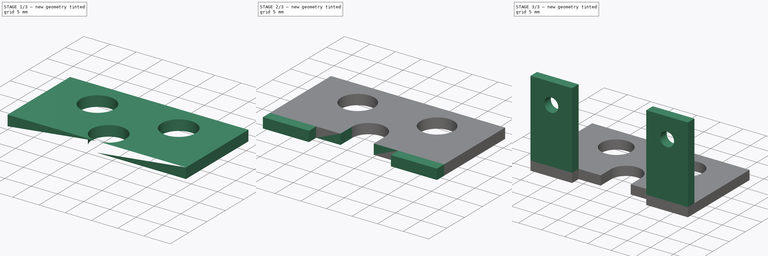
[diagram: build sequence overview — one tinted view per stage of 3, left to right]
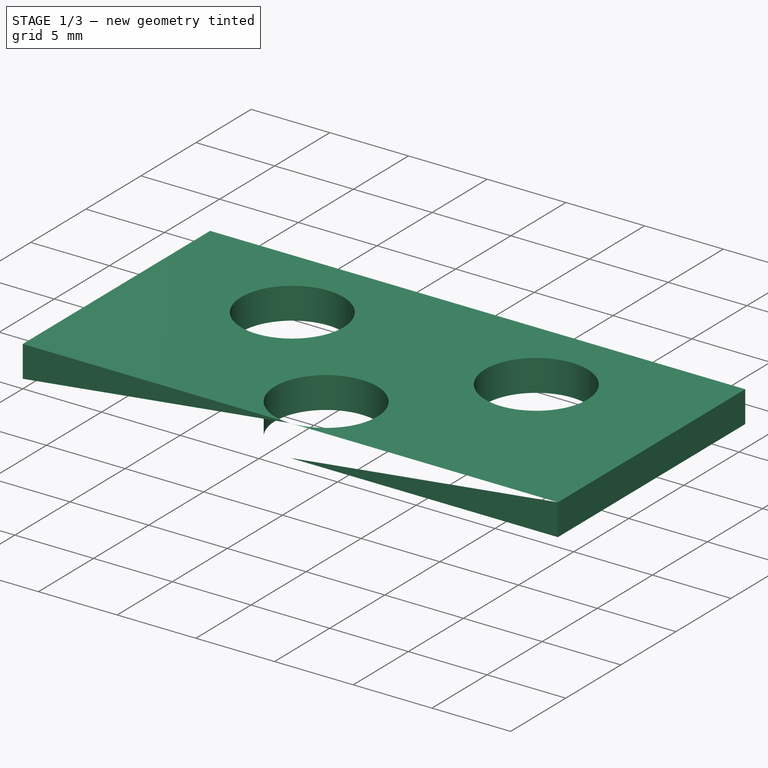
[diagram: stage 1 of 3 — iso view after this stage's code; geometry added in this stage tinted green]
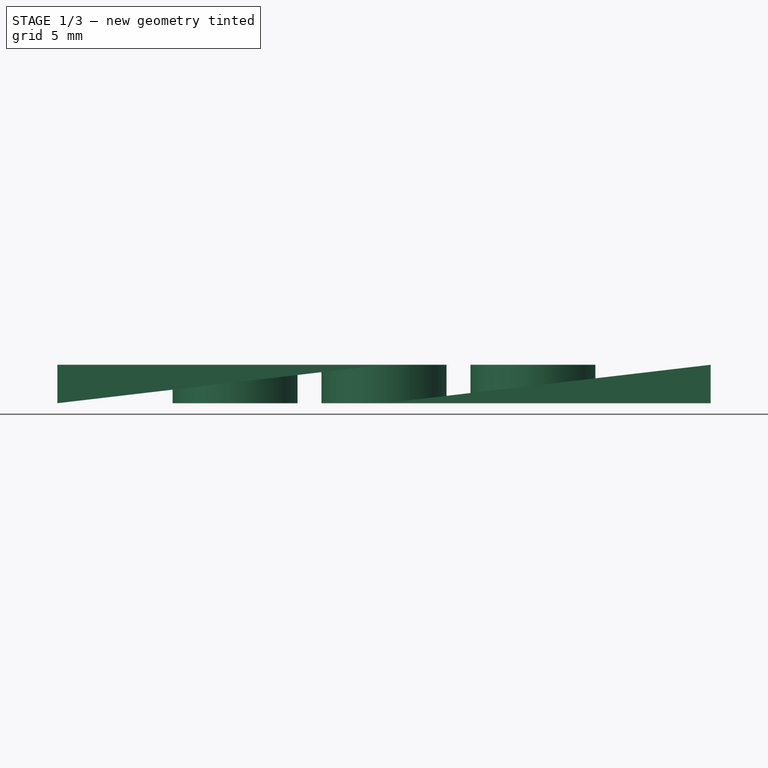
[diagram: stage 1 of 3 — front view after this stage's code; geometry added in this stage tinted green]
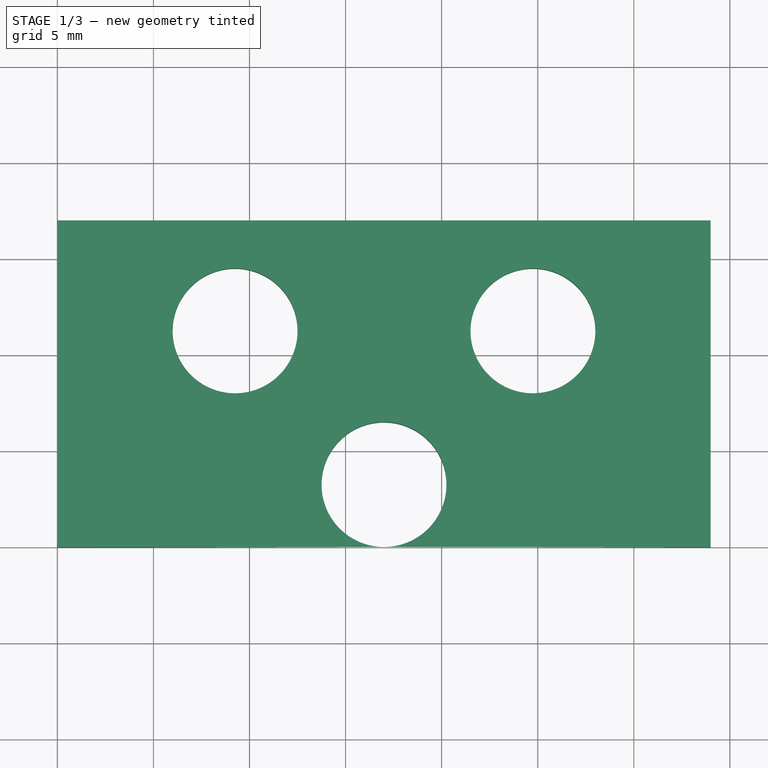
[diagram: stage 1 of 3 — top view after this stage's code; geometry added in this stage tinted green]
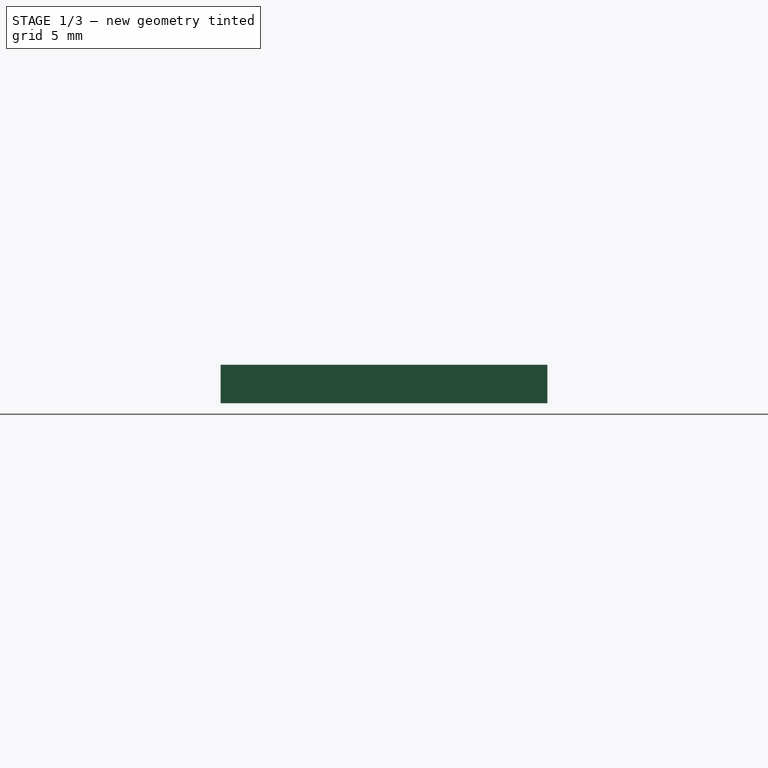
[diagram: stage 1 of 3 — right view after this stage's code; geometry added in this stage tinted green]
FCSTD DOCUMENT  (FreeCAD 0.16R)
Label: support_led_top
License: All rights reserved
LicenseURL: http://en.wikipedia.org/wiki/All_rights_reserved
objects: Sketcher::SketchObject×5, PartDesign::Pocket×3, PartDesign::Pad×2, Part::Box×1
note: 16 computed .brp shape members not serialized (recipe doc carries the construction recipe); baked Part::Feature solids carry a one-line shape summary decoded from their .brp

FEATURE [Part::Box] Box  label="Cube"
  Height = 2
  Length = 34
  Width = 17
FEATURE [Sketcher::SketchObject] Sketch
  ExternalGeometry = -> [Box]
  Placement = pos=(0,0,2) rot=(0,0,1;0rad)
  Support = -> Box [Face6]
  sketch-geometry (5):
    g0: Circle CenterX=9.25 CenterY=11.25 CenterZ=0 NormalX=0 NormalY=0 NormalZ=1 Radius=3.25
    g1: Circle CenterX=24.75 CenterY=11.25 CenterZ=0 NormalX=0 NormalY=0 NormalZ=1 Radius=3.25
    g2: Circle CenterX=17 CenterY=3.25 CenterZ=0 NormalX=0 NormalY=0 NormalZ=1 Radius=3.25
    g3: LineSegment StartX=13.75 StartY=3.25 StartZ=0 EndX=13.75 EndY=0 EndZ=0
    g4: LineSegment StartX=20.25 StartY=3.24998 StartZ=0 EndX=20.25 EndY=0 EndZ=0
  constraints (17):
    c: Radius(g0) = 3.25
    c: Distance(g0,g-3) = 9.25
    c: Distance(g0,g-5) = 11.25
    c: Radius(g1) = 3.25
    c: Distance(g1,g-6) = 9.25
    c: Distance(g1,g-5) = 11.25
    c: Radius(g2) = 3.25
    c: Distance(g2,g-5) = 3.25
    c: Distance(g2,g-3) = 17
    c: PointOnObject(g3,g2)
    c: PointOnObject(g3,g-5)
    c: Vertical(g3)
    c: Tangent(g3,g2)
    c: PointOnObject(g4,g2)
    c: PointOnObject(g4,g-5)
    c: Vertical(g4)
    c: Tangent(g4,g2)
FEATURE [PartDesign::Pocket] Pocket
  Length = 2
  Sketch = -> Sketch
  Type = 0
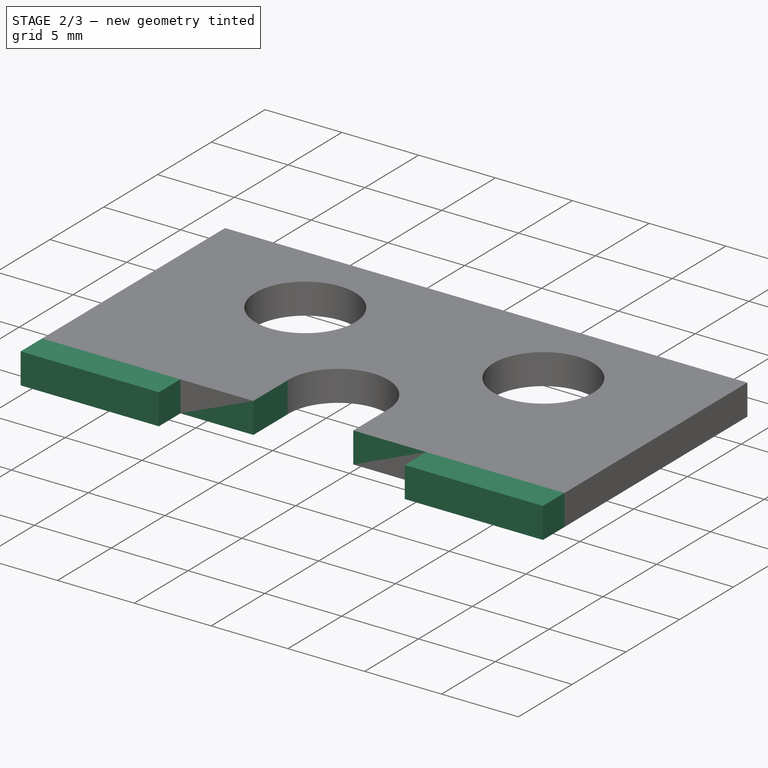
[diagram: stage 2 of 3 — iso view after this stage's code; geometry added in this stage tinted green]
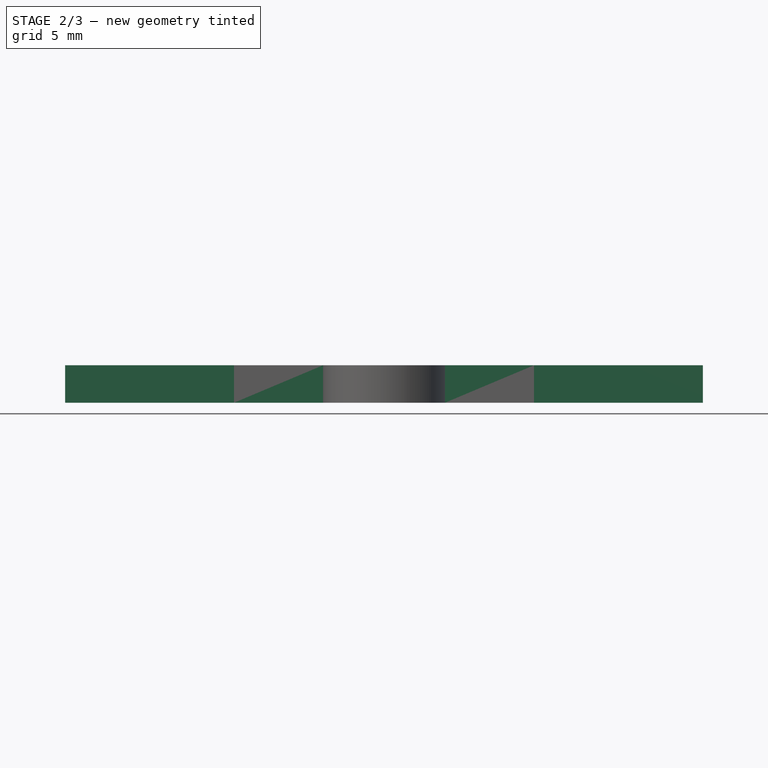
[diagram: stage 2 of 3 — front view after this stage's code; geometry added in this stage tinted green]
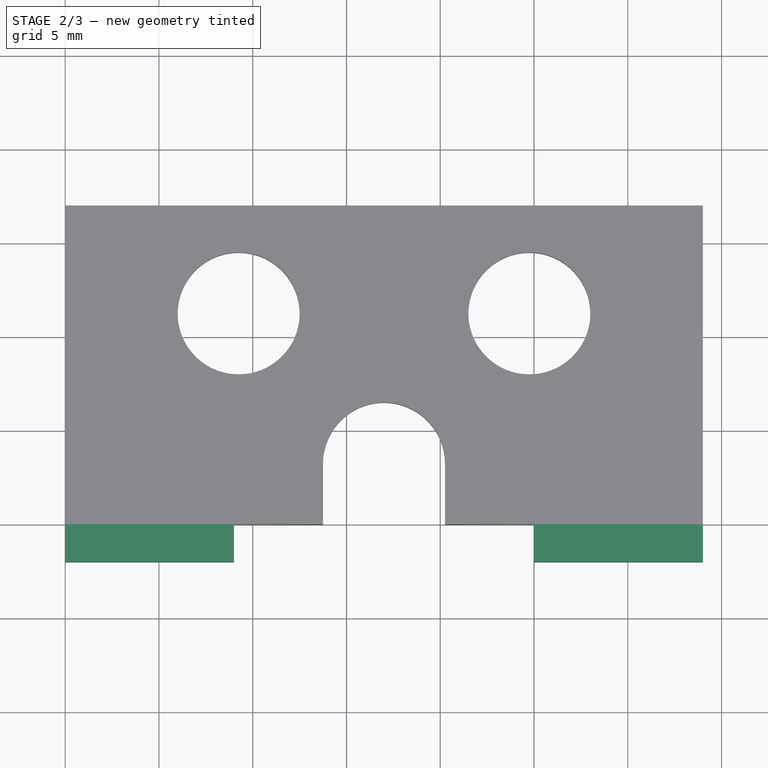
[diagram: stage 2 of 3 — top view after this stage's code; geometry added in this stage tinted green]
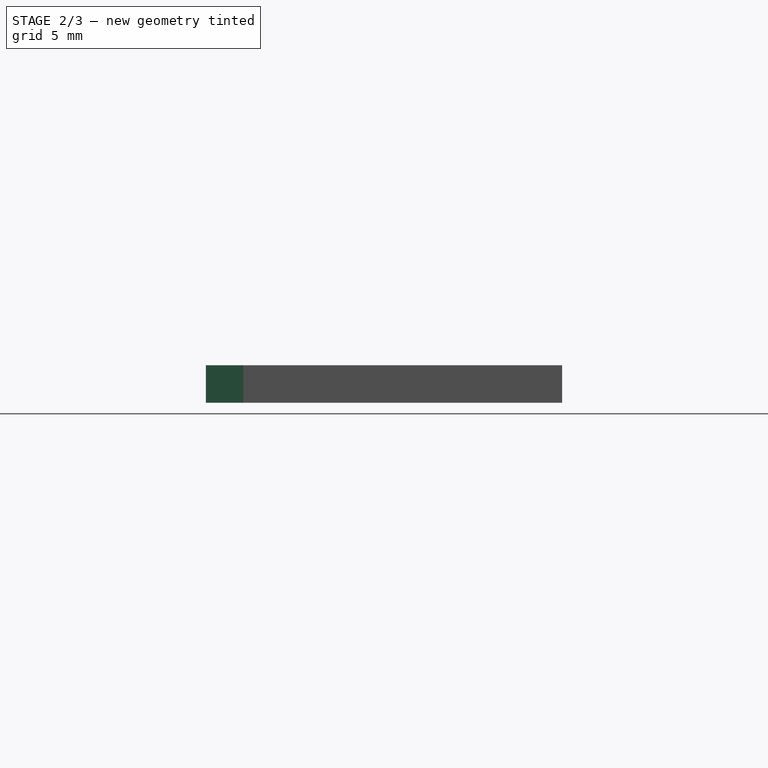
[diagram: stage 2 of 3 — right view after this stage's code; geometry added in this stage tinted green]
FEATURE [Sketcher::SketchObject] Sketch001
  ExternalGeometry = -> [Pocket]
  Placement = pos=(0,0,2) rot=(0,0,1;0rad)
  Support = -> Pocket [Face3]
  sketch-geometry (4):
    g0: LineSegment StartX=13.7506 StartY=3.18723 StartZ=0 EndX=20.2494 EndY=3.18723 EndZ=0
    g1: LineSegment StartX=20.2494 StartY=3.18723 StartZ=0 EndX=20.2494 EndY=0 EndZ=0
    g2: LineSegment StartX=20.2494 StartY=0 StartZ=0 EndX=13.7506 EndY=0 EndZ=0
    g3: LineSegment StartX=13.7506 StartY=0 StartZ=0 EndX=13.7506 EndY=3.18723 EndZ=0
  constraints (11):
    c: Coincident(g0,g1)
    c: Coincident(g1,g2)
    c: Coincident(g2,g3)
    c: Coincident(g3,g0)
    c: Horizontal(g0)
    c: Horizontal(g2)
    c: Vertical(g1)
    c: Vertical(g3)
    c: PointOnObject(g0,g-3)
    c: PointOnObject(g1,g-1)
    c: PointOnObject(g0,g-3)
FEATURE [PartDesign::Pocket] Pocket001
  Length = 2
  Sketch = -> Sketch001
  Type = 0
FEATURE [Sketcher::SketchObject] Sketch002
  ExternalGeometry = -> [Pocket001]
  Placement = pos=(0,0,0) rot=(1,0,0;1.5708rad)
  Support = -> Pocket001 [Face2]
  sketch-geometry (8):
    g0: LineSegment StartX=0 StartY=0 StartZ=0 EndX=9 EndY=0 EndZ=0
    g1: LineSegment StartX=9 StartY=0 StartZ=0 EndX=9 EndY=2 EndZ=0
    g2: LineSegment StartX=9 StartY=2 StartZ=0 EndX=0 EndY=2 EndZ=0
    g3: LineSegment StartX=0 StartY=2 StartZ=0 EndX=0 EndY=0 EndZ=0
    g4: LineSegment StartX=34 StartY=0 StartZ=0 EndX=25 EndY=0 EndZ=0
    g5: LineSegment StartX=25 StartY=0 StartZ=0 EndX=25 EndY=2 EndZ=0
    g6: LineSegment StartX=25 StartY=2 StartZ=0 EndX=34 EndY=2 EndZ=0
    g7: LineSegment StartX=34 StartY=2 StartZ=0 EndX=34 EndY=0 EndZ=0
  constraints (22):
    c: Coincident(g0,g1)
    c: Coincident(g1,g2)
    c: Coincident(g2,g3)
    c: Coincident(g3,g0)
    c: Horizontal(g0)
    c: Horizontal(g2)
    c: Vertical(g1)
    c: Vertical(g3)
    c: Coincident(g0,g-1)
    c: PointOnObject(g1,g-7)
    c: Coincident(g4,g5)
    c: Coincident(g5,g6)
    c: Coincident(g6,g7)
    c: Coincident(g7,g4)
    c: Horizontal(g4)
    c: Horizontal(g6)
    c: Vertical(g5)
    c: Vertical(g7)
    c: Coincident(g4,g-6)
    c: PointOnObject(g5,g-8)
    c: Distance(g1,g-4) = 9
    c: Distance(g5,g-6) = 9
FEATURE [PartDesign::Pad] Pad
  Length = 2
  Length2 = 100
  Sketch = -> Sketch002
  Type = 0
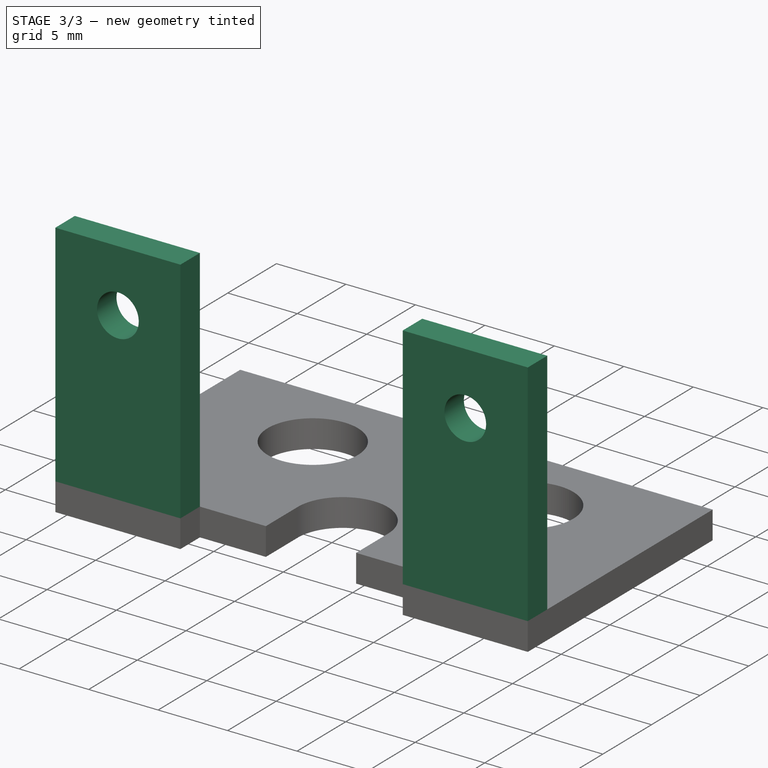
[diagram: stage 3 of 3 — iso view after this stage's code; geometry added in this stage tinted green]
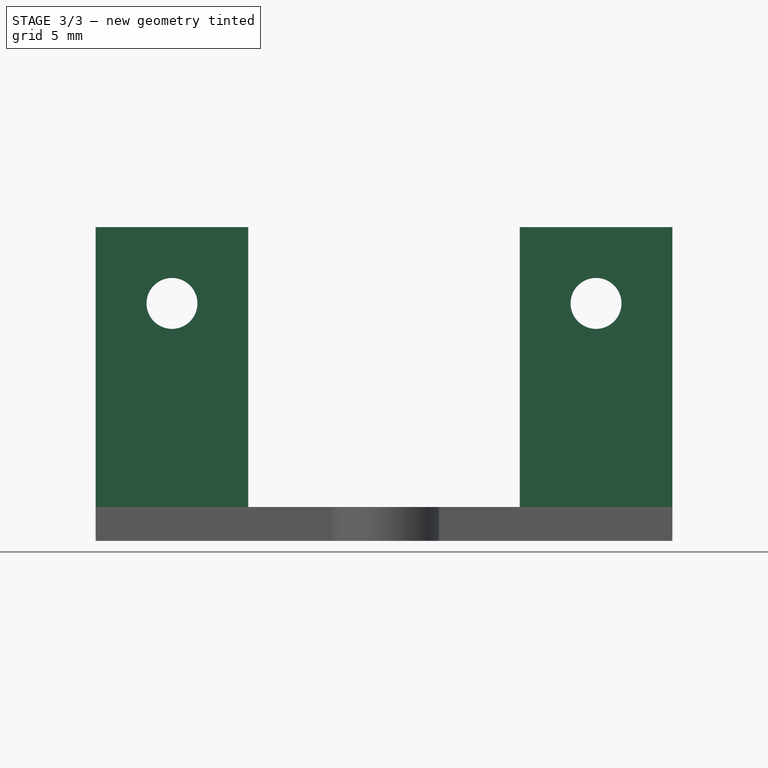
[diagram: stage 3 of 3 — front view after this stage's code; geometry added in this stage tinted green]
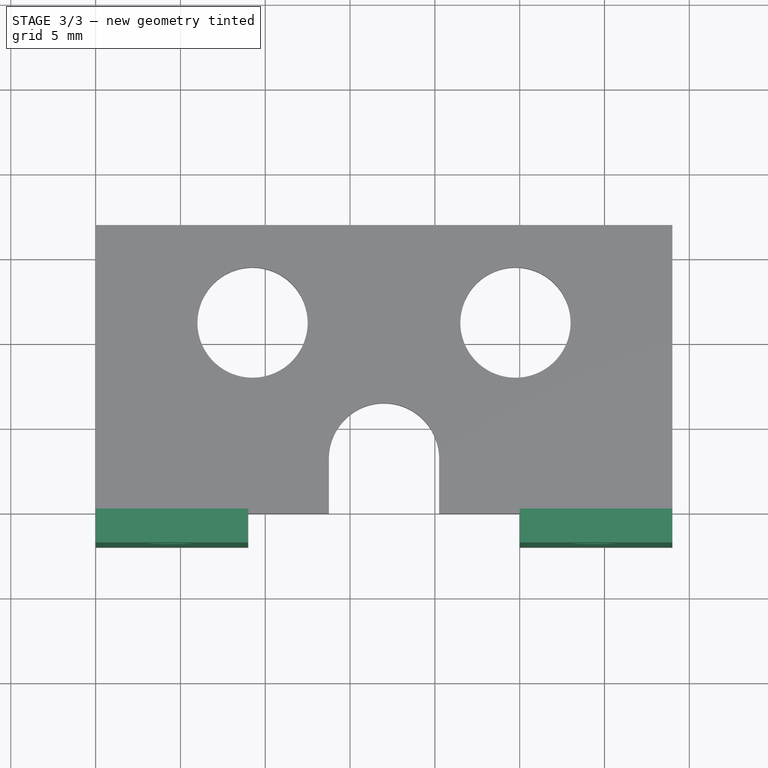
[diagram: stage 3 of 3 — top view after this stage's code; geometry added in this stage tinted green]
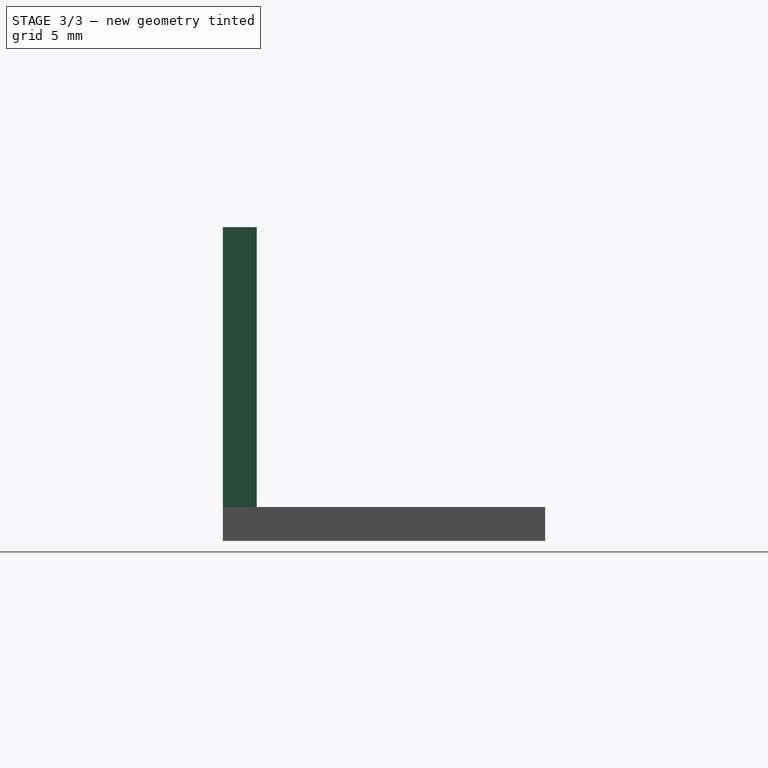
[diagram: stage 3 of 3 — right view after this stage's code; geometry added in this stage tinted green]
FEATURE [Sketcher::SketchObject] Sketch003
  ExternalGeometry = -> [Pad]
  Placement = pos=(0,0,2) rot=(0,0,1;0rad)
  Support = -> Pad [Face18]
  sketch-geometry (8):
    g0: LineSegment StartX=0 StartY=-2 StartZ=0 EndX=9 EndY=-2 EndZ=0
    g1: LineSegment StartX=9 StartY=-2 StartZ=0 EndX=9 EndY=0 EndZ=0
    g2: LineSegment StartX=9 StartY=0 StartZ=0 EndX=0 EndY=0 EndZ=0
    g3: LineSegment StartX=0 StartY=0 StartZ=0 EndX=0 EndY=-2 EndZ=0
    g4: LineSegment StartX=34 StartY=-2 StartZ=0 EndX=25 EndY=-2 EndZ=0
    g5: LineSegment StartX=25 StartY=-2 StartZ=0 EndX=25 EndY=0 EndZ=0
    g6: LineSegment StartX=25 StartY=0 StartZ=0 EndX=34 EndY=0 EndZ=0
    g7: LineSegment StartX=34 StartY=0 StartZ=0 EndX=34 EndY=-2 EndZ=0
  constraints (18):
    c: Coincident(g0,g1)
    c: Coincident(g1,g2)
    c: Coincident(g2,g3)
    c: Coincident(g3,g0)
    c: Horizontal(g0)
    c: Horizontal(g2)
    c: Vertical(g1)
    c: Vertical(g3)
    c: Coincident(g1,g-4)
    c: Coincident(g4,g5)
    c: Coincident(g5,g6)
    c: Coincident(g6,g7)
    c: Coincident(g7,g4)
    c: Horizontal(g4)
    c: Horizontal(g6)
    c: Vertical(g5)
    c: Vertical(g7)
    c: Coincident(g4,g-9)
FEATURE [PartDesign::Pad] Pad001
  Length = 16.5
  Length2 = 100
  Sketch = -> Sketch003
  Type = 0
FEATURE [Sketcher::SketchObject] Sketch004
  ExternalGeometry = -> [Pad001]
  Placement = pos=(0,-2,0) rot=(1,0,0;1.5708rad)
  Support = -> Pad001 [Face31]
  sketch-geometry (2):
    g0: Circle CenterX=4.5 CenterY=14 CenterZ=0 NormalX=0 NormalY=0 NormalZ=1 Radius=1.5
    g1: Circle CenterX=29.5 CenterY=14 CenterZ=0 NormalX=0 NormalY=0 NormalZ=1 Radius=1.5
  constraints (6):
    c: Distance(g0,g-4) = 12
    c: Distance(g0,g-3) = 4.5
    c: Radius(g0) = 1.5
    c: Distance(g1,g-5) = 12
    c: Distance(g1,g-6) = 4.5
    c: Radius(g1) = 1.5
FEATURE [PartDesign::Pocket] Pocket002
  Length = 2
  Sketch = -> Sketch004
  Type = 0
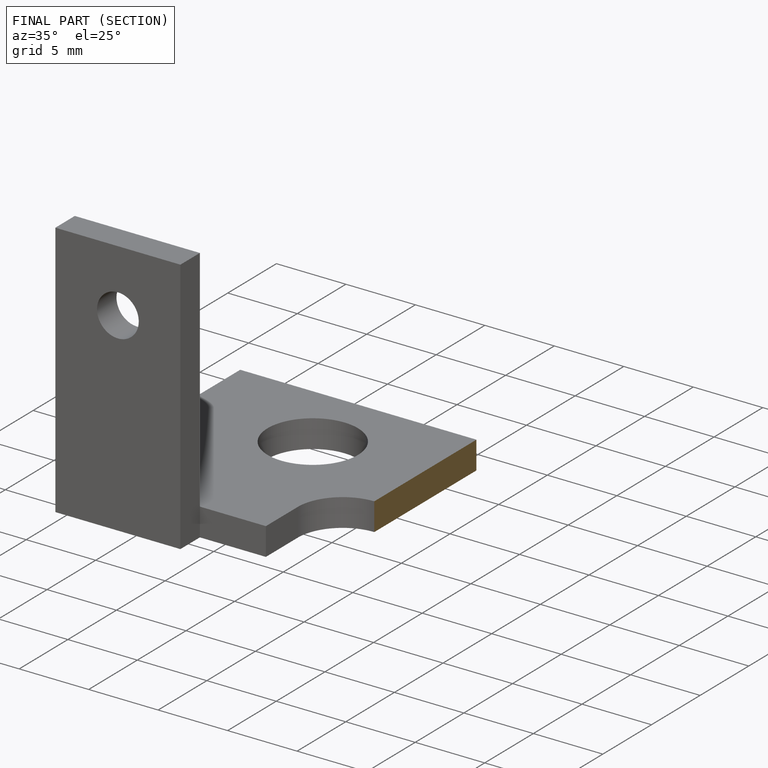
[diagram: finished part — half-section view (interior)]
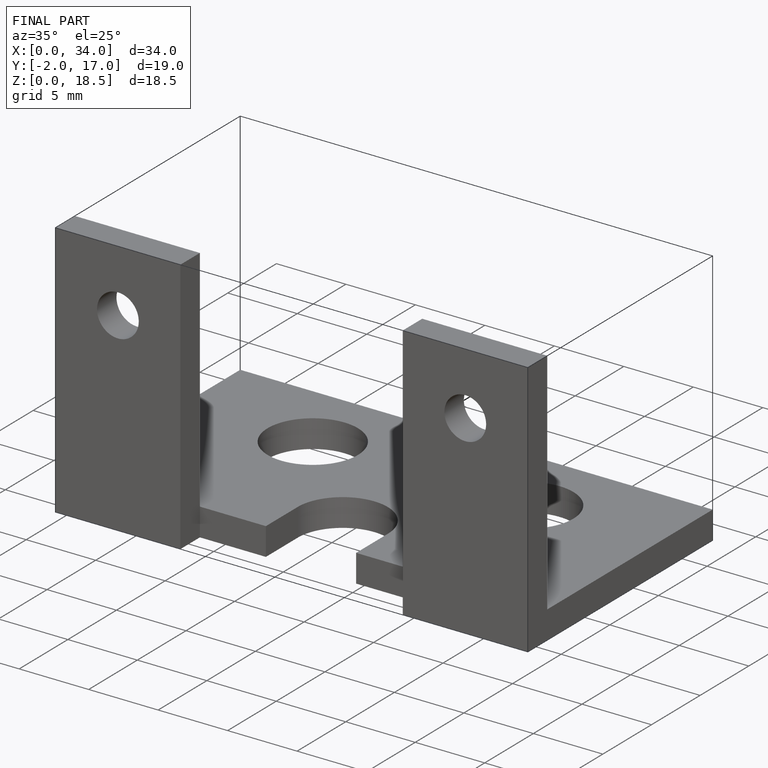
[diagram: finished part — iso view with bounding-box wireframe]
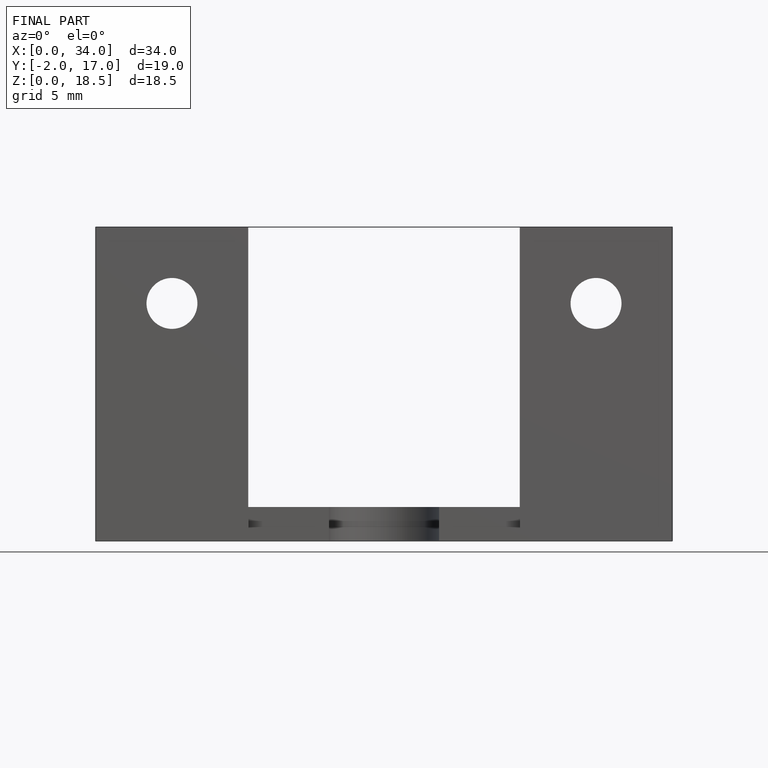
[diagram: finished part — front view with bounding-box wireframe]
